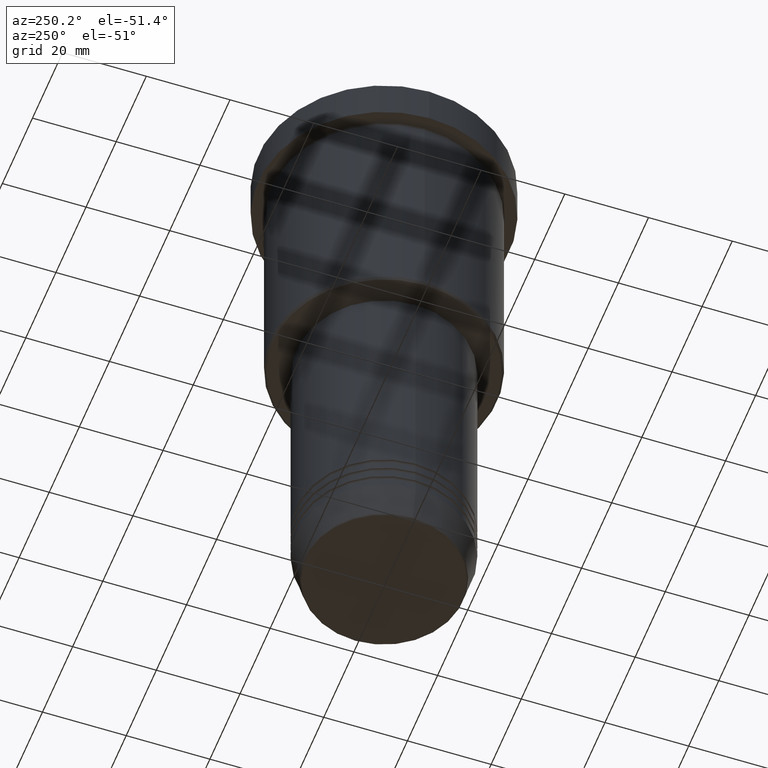
[diagram: clean part render]
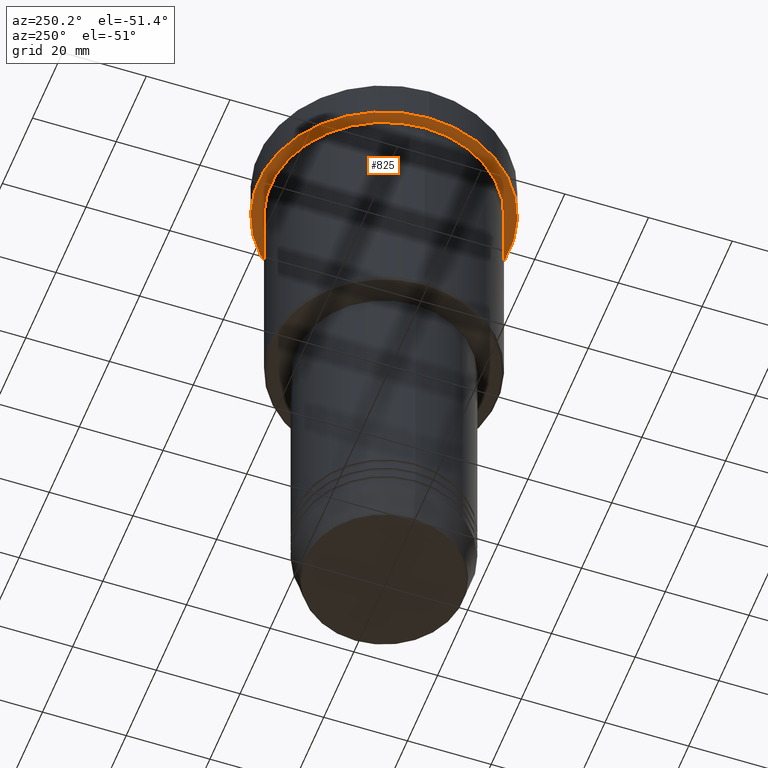
[diagram: same view with one face highlighted and labeled with its STEP entity id]
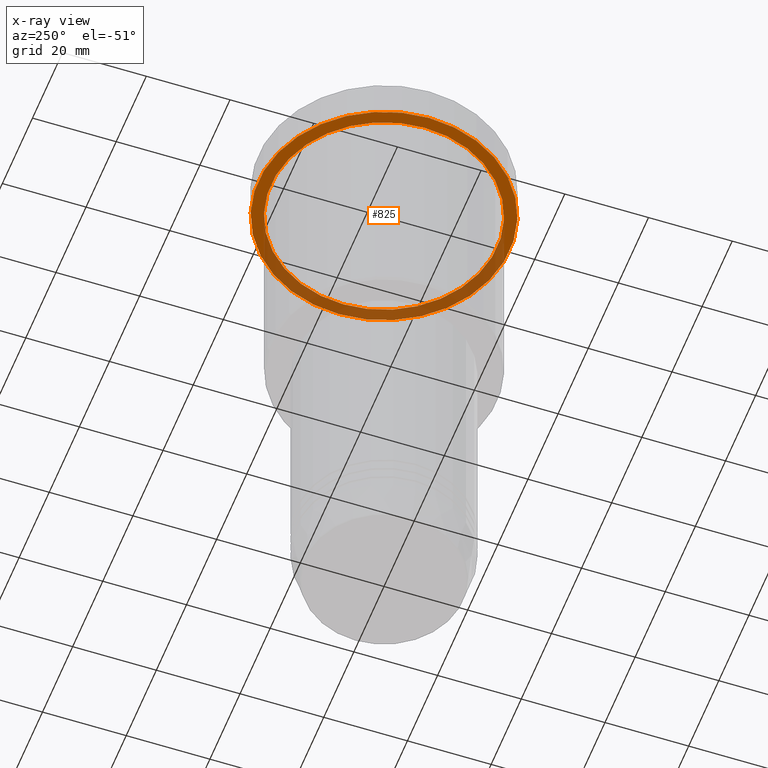
[diagram: x-ray of the same camera — body ghosted, the highlighted face saturated]
A machine part, auxiliary view. The second image highlights one B-rep face of the part: STEP entity #825.
The next image is the same camera in x-ray: the body ghosted, the highlighted face saturated — about 40% of this face is hidden behind the body in this view.
In plain terms, the highlighted planar face has unit normal (0, 0, -1).
Its self-contained STEP definition (entity closure, byte-faithful):
#15 = ORIENTED_EDGE ( 'NONE', *, *, #73, .T. ) ;
#64 = ORIENTED_EDGE ( 'NONE', *, *, #936, .F. ) ;
#73 = EDGE_CURVE ( 'NONE', #523, #616, #715, .T. ) ;
#95 = CARTESIAN_POINT ( 'NONE',  ( 0.000000000000000000, 0.000000000000000000, -9.999999999999992895 ) ) ;
#116 = CIRCLE ( 'NONE', #791, 27.00000000000000355 ) ;
#128 = CARTESIAN_POINT ( 'NONE',  ( 27.00000000000000355, 3.306546357697854128E-15, -9.999999999999992895 ) ) ;
#151 = EDGE_LOOP ( 'NONE', ( #64, #726 ) ) ;
#167 = ORIENTED_EDGE ( 'NONE', *, *, #815, .T. ) ;
#174 = DIRECTION ( 'NONE',  ( -1.000000000000000000, 0.000000000000000000, -0.000000000000000000 ) ) ;
#188 = DIRECTION ( 'NONE',  ( -1.000000000000000000, 0.000000000000000000, 0.000000000000000000 ) ) ;
#190 = AXIS2_PLACEMENT_3D ( 'NONE', #430, #998, #446 ) ;
#239 = CARTESIAN_POINT ( 'NONE',  ( -27.00000000000000355, 0.000000000000000000, -9.999999999999992895 ) ) ;
#246 = AXIS2_PLACEMENT_3D ( 'NONE', #95, #928, #840 ) ;
#261 = DIRECTION ( 'NONE',  ( -1.000000000000000000, 0.000000000000000000, 0.000000000000000000 ) ) ;
#282 = DIRECTION ( 'NONE',  ( -0.000000000000000000, -0.000000000000000000, 1.000000000000000000 ) ) ;
#358 = CARTESIAN_POINT ( 'NONE',  ( 0.000000000000000000, 30.00000000000000000, -9.999999999999992895 ) ) ;
#370 = DIRECTION ( 'NONE',  ( 0.000000000000000000, 0.000000000000000000, -1.000000000000000000 ) ) ;
#378 = EDGE_CURVE ( 'NONE', #741, #1110, #1098, .T. ) ;
#430 = CARTESIAN_POINT ( 'NONE',  ( 0.000000000000000000, 0.000000000000000000, -9.999999999999992895 ) ) ;
#446 = DIRECTION ( 'NONE',  ( 1.000000000000000000, 0.000000000000000000, 0.000000000000000000 ) ) ;
#453 = PLANE ( 'NONE',  #1023 ) ;
#501 = AXIS2_PLACEMENT_3D ( 'NONE', #648, #282, #188 ) ;
#523 = VERTEX_POINT ( 'NONE', #128 ) ;
#546 = DIRECTION ( 'NONE',  ( -0.000000000000000000, -0.000000000000000000, 1.000000000000000000 ) ) ;
#616 = VERTEX_POINT ( 'NONE', #239 ) ;
#648 = CARTESIAN_POINT ( 'NONE',  ( 0.000000000000000000, 0.000000000000000000, -9.999999999999992895 ) ) ;
#675 = CIRCLE ( 'NONE', #246, 30.00000000000000000 ) ;
#715 = CIRCLE ( 'NONE', #501, 27.00000000000000355 ) ;
#726 = ORIENTED_EDGE ( 'NONE', *, *, #378, .F. ) ;
#741 = VERTEX_POINT ( 'NONE', #1176 ) ;
#791 = AXIS2_PLACEMENT_3D ( 'NONE', #831, #546, #261 ) ;
#815 = EDGE_CURVE ( 'NONE', #616, #523, #116, .T. ) ;
#825 = ADVANCED_FACE ( 'NONE', ( #1002, #935 ), #453, .T. ) ;
#831 = CARTESIAN_POINT ( 'NONE',  ( 0.000000000000000000, 0.000000000000000000, -9.999999999999992895 ) ) ;
#840 = DIRECTION ( 'NONE',  ( 1.000000000000000000, 0.000000000000000000, 0.000000000000000000 ) ) ;
#928 = DIRECTION ( 'NONE',  ( -0.000000000000000000, -0.000000000000000000, 1.000000000000000000 ) ) ;
#935 = FACE_OUTER_BOUND ( 'NONE', #151, .T. ) ;
#936 = EDGE_CURVE ( 'NONE', #1110, #741, #675, .T. ) ;
#998 = DIRECTION ( 'NONE',  ( -0.000000000000000000, -0.000000000000000000, 1.000000000000000000 ) ) ;
#1002 = FACE_BOUND ( 'NONE', #1063, .T. ) ;
#1023 = AXIS2_PLACEMENT_3D ( 'NONE', #358, #370, #174 ) ;
#1062 = CARTESIAN_POINT ( 'NONE',  ( 30.00000000000000000, 0.000000000000000000, -9.999999999999992895 ) ) ;
#1063 = EDGE_LOOP ( 'NONE', ( #167, #15 ) ) ;
#1098 = CIRCLE ( 'NONE', #190, 30.00000000000000000 ) ;
#1110 = VERTEX_POINT ( 'NONE', #1062 ) ;
#1176 = CARTESIAN_POINT ( 'NONE',  ( -30.00000000000000000, 3.673940397442059178E-15, -9.999999999999992895 ) ) ;